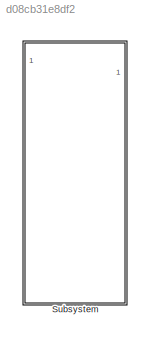
MODEL slx_d08cb31e8df2
KIND model
CONFIG AbsTol = auto
CONFIG EnableMultiTasking = off
CONFIG FixedStep = auto
CONFIG MaxStep = auto
CONFIG MinStep = auto
CONFIG RelTol = 1e-3
CONFIG SampleTimeConstraint = Unconstrained
CONFIG SolverName = VariableStepAuto
CONFIG StartTime = 0.0
CONFIG StopTime = 10.0
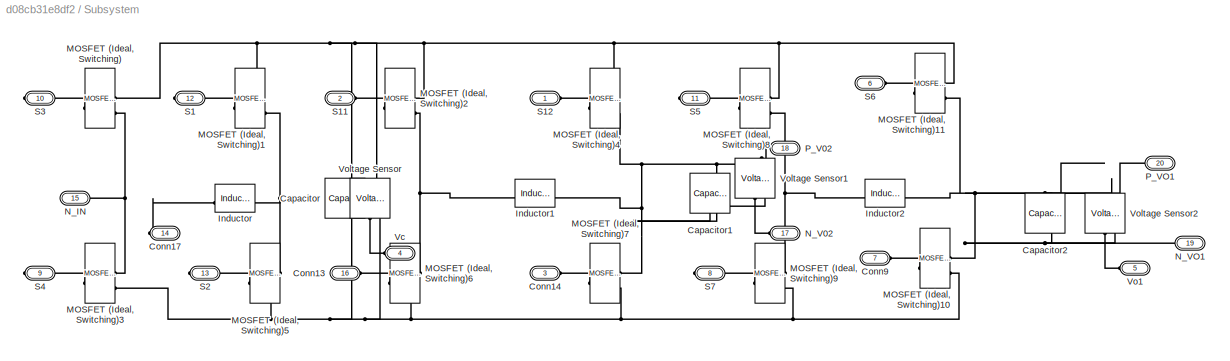
BLOCK [SubSystem] Subsystem
BLOCK [Reference] Subsystem/Capacitor  REF=fl_lib/Electrical/Electrical Elements/Capacitor
  NameLocation = left
  SourceBlock = fl_lib/Electrical/Electrical Elements/Capacitor
  SourceType = Capacitor
BLOCK [Reference] Subsystem/Capacitor1  REF=fl_lib/Electrical/Electrical Elements/Capacitor
  NameLocation = left
  SourceBlock = fl_lib/Electrical/Electrical Elements/Capacitor
  SourceType = Capacitor
BLOCK [Reference] Subsystem/Capacitor2  REF=fl_lib/Electrical/Electrical Elements/Capacitor
  NameLocation = left
  SourceBlock = fl_lib/Electrical/Electrical Elements/Capacitor
  SourceType = Capacitor
BLOCK [PMIOPort] Subsystem/Conn13
  Port = 16
  Side = Left
BLOCK [PMIOPort] Subsystem/Conn14
  Port = 3
  Side = Left
BLOCK [PMIOPort] Subsystem/Conn17
  NameLocation = left
  Port = 14
  Side = Right
BLOCK [PMIOPort] Subsystem/Conn9
  Port = 7
  Side = Left
BLOCK [Reference] Subsystem/Inductor  REF=ee_lib/Passive/Inductor
  SourceBlock = ee_lib/Passive/Inductor
  SourceType = Inductor
BLOCK [Reference] Subsystem/Inductor1  REF=ee_lib/Passive/Inductor
  SourceBlock = ee_lib/Passive/Inductor
  SourceType = Inductor
BLOCK [Reference] Subsystem/Inductor2  REF=ee_lib/Passive/Inductor
  SourceBlock = ee_lib/Passive/Inductor
  SourceType = Inductor
BLOCK [Reference] Subsystem/MOSFET (Ideal, Switching)  REF=ee_lib/Semiconductors &
Converters/MOSFET
(Ideal,
Switching)
  SourceBlock = ee_lib/Semiconductors &\nConverters/MOSFET\n(Ideal,\nSwitching)
  SourceType = MOSFET\n(Ideal,\nSwitching)
BLOCK [Reference] Subsystem/MOSFET (Ideal, Switching)1  REF=ee_lib/Semiconductors &
Converters/MOSFET
(Ideal,
Switching)
  SourceBlock = ee_lib/Semiconductors &\nConverters/MOSFET\n(Ideal,\nSwitching)
  SourceType = MOSFET\n(Ideal,\nSwitching)
BLOCK [Reference] Subsystem/MOSFET (Ideal, Switching)10  REF=ee_lib/Semiconductors &
Converters/MOSFET
(Ideal,
Switching)
  SourceBlock = ee_lib/Semiconductors &\nConverters/MOSFET\n(Ideal,\nSwitching)
  SourceType = MOSFET\n(Ideal,\nSwitching)
BLOCK [Reference] Subsystem/MOSFET (Ideal, Switching)11  REF=ee_lib/Semiconductors &
Converters/MOSFET
(Ideal,
Switching)
  SourceBlock = ee_lib/Semiconductors &\nConverters/MOSFET\n(Ideal,\nSwitching)
  SourceType = MOSFET\n(Ideal,\nSwitching)
BLOCK [Reference] Subsystem/MOSFET (Ideal, Switching)2  REF=ee_lib/Semiconductors &
Converters/MOSFET
(Ideal,
Switching)
  SourceBlock = ee_lib/Semiconductors &\nConverters/MOSFET\n(Ideal,\nSwitching)
  SourceType = MOSFET\n(Ideal,\nSwitching)
BLOCK [Reference] Subsystem/MOSFET (Ideal, Switching)3  REF=ee_lib/Semiconductors &
Converters/MOSFET
(Ideal,
Switching)
  SourceBlock = ee_lib/Semiconductors &\nConverters/MOSFET\n(Ideal,\nSwitching)
  SourceType = MOSFET\n(Ideal,\nSwitching)
BLOCK [Reference] Subsystem/MOSFET (Ideal, Switching)4  REF=ee_lib/Semiconductors &
Converters/MOSFET
(Ideal,
Switching)
  SourceBlock = ee_lib/Semiconductors &\nConverters/MOSFET\n(Ideal,\nSwitching)
  SourceType = MOSFET\n(Ideal,\nSwitching)
BLOCK [Reference] Subsystem/MOSFET (Ideal, Switching)5  REF=ee_lib/Semiconductors &
Converters/MOSFET
(Ideal,
Switching)
  SourceBlock = ee_lib/Semiconductors &\nConverters/MOSFET\n(Ideal,\nSwitching)
  SourceType = MOSFET\n(Ideal,\nSwitching)
BLOCK [Reference] Subsystem/MOSFET (Ideal, Switching)6  REF=ee_lib/Semiconductors &
Converters/MOSFET
(Ideal,
Switching)
  SourceBlock = ee_lib/Semiconductors &\nConverters/MOSFET\n(Ideal,\nSwitching)
  SourceType = MOSFET\n(Ideal,\nSwitching)
BLOCK [Reference] Subsystem/MOSFET (Ideal, Switching)7  REF=ee_lib/Semiconductors &
Converters/MOSFET
(Ideal,
Switching)
  SourceBlock = ee_lib/Semiconductors &\nConverters/MOSFET\n(Ideal,\nSwitching)
  SourceType = MOSFET\n(Ideal,\nSwitching)
BLOCK [Reference] Subsystem/MOSFET (Ideal, Switching)8  REF=ee_lib/Semiconductors &
Converters/MOSFET
(Ideal,
Switching)
  SourceBlock = ee_lib/Semiconductors &\nConverters/MOSFET\n(Ideal,\nSwitching)
  SourceType = MOSFET\n(Ideal,\nSwitching)
BLOCK [Reference] Subsystem/MOSFET (Ideal, Switching)9  REF=ee_lib/Semiconductors &
Converters/MOSFET
(Ideal,
Switching)
  SourceBlock = ee_lib/Semiconductors &\nConverters/MOSFET\n(Ideal,\nSwitching)
  SourceType = MOSFET\n(Ideal,\nSwitching)
BLOCK [PMIOPort] Subsystem/N_IN
  Port = 15
  Side = Left
BLOCK [PMIOPort] Subsystem/N_V02
  Port = 17
  Side = Left
BLOCK [PMIOPort] Subsystem/N_VO1
  Port = 19
  Side = Left
BLOCK [PMIOPort] Subsystem/P_V02
  Port = 18
  Side = Left
BLOCK [PMIOPort] Subsystem/P_VO1
  Port = 20
  Side = Left
BLOCK [PMIOPort] Subsystem/S1
  Port = 12
  Side = Right
BLOCK [PMIOPort] Subsystem/S11
  Port = 2
  Side = Left
BLOCK [PMIOPort] Subsystem/S12
  Side = Left
BLOCK [PMIOPort] Subsystem/S2
  Port = 13
  Side = Right
BLOCK [PMIOPort] Subsystem/S3
  Port = 10
  Side = Right
BLOCK [PMIOPort] Subsystem/S4
  Port = 9
  Side = Right
BLOCK [PMIOPort] Subsystem/S5
  Port = 11
  Side = Right
BLOCK [PMIOPort] Subsystem/S6
  Port = 6
  Side = Left
BLOCK [PMIOPort] Subsystem/S7
  Port = 8
  Side = Right
BLOCK [PMIOPort] Subsystem/Vc
  Port = 4
  Side = Left
BLOCK [PMIOPort] Subsystem/Vo1
  Port = 5
  Side = Left
BLOCK [Reference] Subsystem/Voltage Sensor  REF=fl_lib/Electrical/Electrical Sensors/Voltage Sensor
  NameLocation = right
  SourceBlock = fl_lib/Electrical/Electrical Sensors/Voltage Sensor
  SourceType = Voltage Sensor
BLOCK [Reference] Subsystem/Voltage Sensor1  REF=fl_lib/Electrical/Electrical Sensors/Voltage Sensor
  NameLocation = right
  SourceBlock = fl_lib/Electrical/Electrical Sensors/Voltage Sensor
  SourceType = Voltage Sensor
BLOCK [Reference] Subsystem/Voltage Sensor2  REF=fl_lib/Electrical/Electrical Sensors/Voltage Sensor
  NameLocation = right
  SourceBlock = fl_lib/Electrical/Electrical Sensors/Voltage Sensor
  SourceType = Voltage Sensor
PNET net1: Subsystem/Capacitor1:LConn1 -- Subsystem/Capacitor1:RConn1 -- Subsystem/Inductor1:RConn1 -- Subsystem/MOSFET (Ideal, Switching)4:RConn2 -- Subsystem/MOSFET (Ideal, Switching)7:RConn1 -- Subsystem/P_V02:RConn1 -- Subsystem/Voltage Sensor1:LConn1 -- Subsystem/Voltage Sensor1:RConn2
PNET net2: Subsystem/Capacitor2:LConn1 -- Subsystem/Capacitor2:RConn1 -- Subsystem/Inductor2:RConn1 -- Subsystem/MOSFET (Ideal, Switching)10:RConn1 -- Subsystem/MOSFET (Ideal, Switching)11:RConn2 -- Subsystem/N_VO1:RConn1 -- Subsystem/P_VO1:RConn1 -- Subsystem/Voltage Sensor2:LConn1 -- Subsystem/Voltage Sensor2:RConn2
PNET net3: Subsystem/Capacitor:LConn1 -- Subsystem/MOSFET (Ideal, Switching)11:RConn1 -- Subsystem/MOSFET (Ideal, Switching)1:RConn1 -- Subsystem/MOSFET (Ideal, Switching)2:RConn1 -- Subsystem/MOSFET (Ideal, Switching)4:RConn1 -- Subsystem/MOSFET (Ideal, Switching)8:RConn1 -- Subsystem/MOSFET (Ideal, Switching):RConn1 -- Subsystem/Voltage Sensor:LConn1
PNET net4: Subsystem/Capacitor:RConn1 -- Subsystem/MOSFET (Ideal, Switching)10:RConn2 -- Subsystem/MOSFET (Ideal, Switching)3:RConn2 -- Subsystem/MOSFET (Ideal, Switching)5:RConn2 -- Subsystem/MOSFET (Ideal, Switching)6:RConn2 -- Subsystem/MOSFET (Ideal, Switching)7:RConn2 -- Subsystem/MOSFET (Ideal, Switching)9:RConn2 -- Subsystem/Voltage Sensor:RConn2
PLINE Subsystem/Conn13:RConn1 -- Subsystem/MOSFET (Ideal, Switching)6:LConn1
PLINE Subsystem/Conn14:RConn1 -- Subsystem/MOSFET (Ideal, Switching)7:LConn1
PLINE Subsystem/Conn17:RConn1 -- Subsystem/Inductor:LConn1
PLINE Subsystem/Conn9:RConn1 -- Subsystem/MOSFET (Ideal, Switching)10:LConn1
PNET net5: Subsystem/Inductor1:LConn1 -- Subsystem/MOSFET (Ideal, Switching)2:RConn2 -- Subsystem/MOSFET (Ideal, Switching)6:RConn1
PNET net6: Subsystem/Inductor2:LConn1 -- Subsystem/MOSFET (Ideal, Switching)8:RConn2 -- Subsystem/MOSFET (Ideal, Switching)9:RConn1
PNET net7: Subsystem/Inductor:RConn1 -- Subsystem/MOSFET (Ideal, Switching)1:RConn2 -- Subsystem/MOSFET (Ideal, Switching)5:RConn1
PLINE Subsystem/MOSFET (Ideal, Switching)11:LConn1 -- Subsystem/S6:RConn1
PLINE Subsystem/MOSFET (Ideal, Switching)1:LConn1 -- Subsystem/S1:RConn1
PLINE Subsystem/MOSFET (Ideal, Switching)2:LConn1 -- Subsystem/S11:RConn1
PLINE Subsystem/MOSFET (Ideal, Switching)3:LConn1 -- Subsystem/S4:RConn1
PNET net8: Subsystem/MOSFET (Ideal, Switching)3:RConn1 -- Subsystem/MOSFET (Ideal, Switching):RConn2 -- Subsystem/N_IN:RConn1
PLINE Subsystem/MOSFET (Ideal, Switching)4:LConn1 -- Subsystem/S12:RConn1
PLINE Subsystem/MOSFET (Ideal, Switching)5:LConn1 -- Subsystem/S2:RConn1
PLINE Subsystem/MOSFET (Ideal, Switching)8:LConn1 -- Subsystem/S5:RConn1
PLINE Subsystem/MOSFET (Ideal, Switching)9:LConn1 -- Subsystem/S7:RConn1
PLINE Subsystem/MOSFET (Ideal, Switching):LConn1 -- Subsystem/S3:RConn1
PLINE Subsystem/N_V02:RConn1 -- Subsystem/Voltage Sensor1:RConn1
PLINE Subsystem/Vc:RConn1 -- Subsystem/Voltage Sensor:RConn1
PLINE Subsystem/Vo1:RConn1 -- Subsystem/Voltage Sensor2:RConn1
note: PNET lines group multi-terminal physical nets as a canonical sorted terminal list (undirected conserving connections); 2-terminal nets keep the pairwise PLINE form
